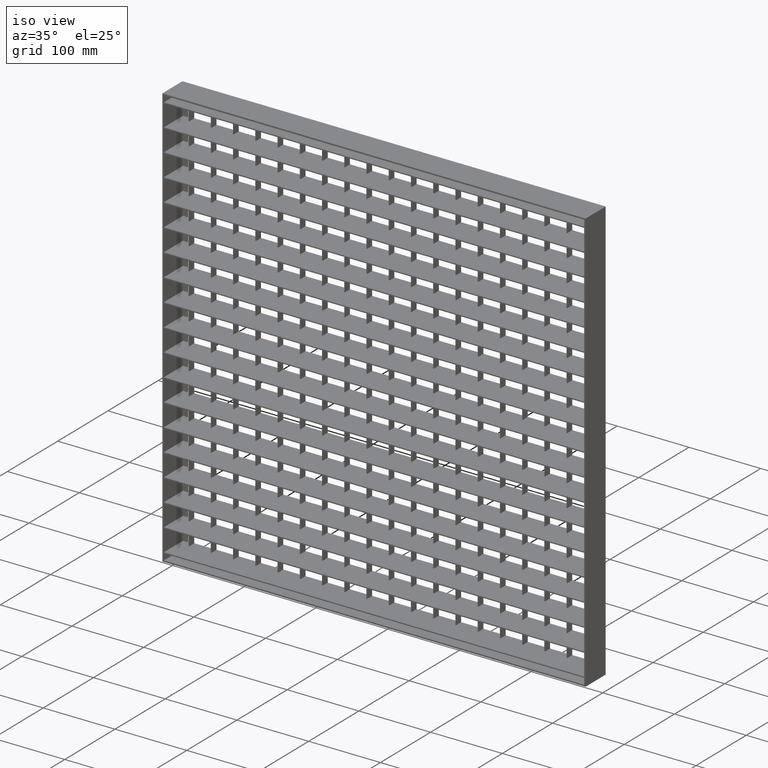
[diagram: clean part render]
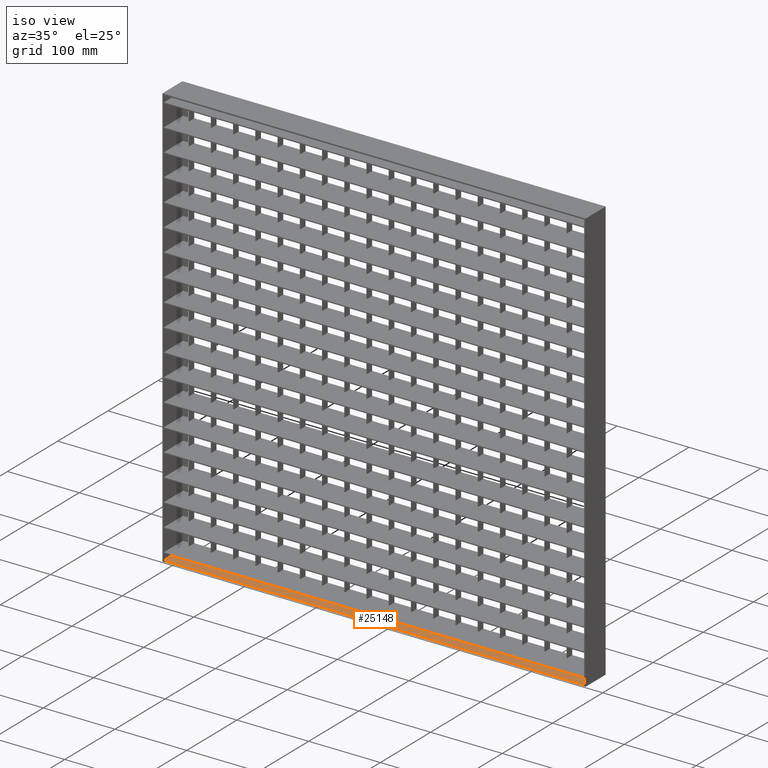
[diagram: same view with one face highlighted and labeled with its STEP entity id]
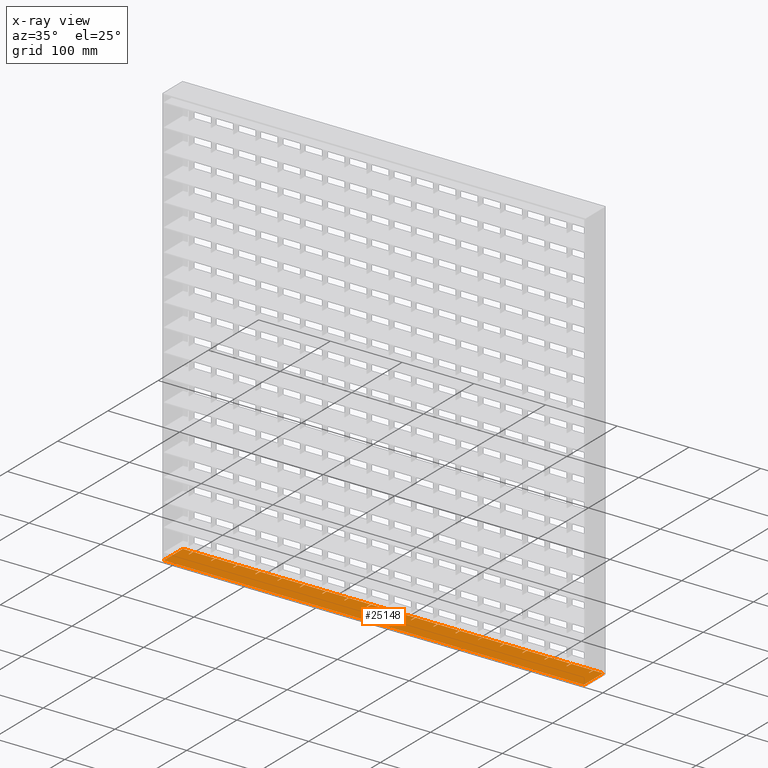
[diagram: x-ray of the same camera — body ghosted, the highlighted face saturated]
A machine part, iso view. The second image highlights one B-rep face of the part: STEP entity #25148.
The next image is the same camera in x-ray: the body ghosted, the highlighted face saturated — about 0% of this face is hidden behind the body in this view.
In plain terms, the highlighted planar face has unit normal (0, 0, -1).
Its self-contained STEP definition (entity closure, byte-faithful):
#134 = VERTEX_POINT ( 'NONE', #45676 ) ;
#180 = CARTESIAN_POINT ( 'NONE',  ( 2.000000000000001800, 18.00000000000000400, -588.0000000000000000 ) ) ;
#240 = CARTESIAN_POINT ( 'NONE',  ( 511.5000000000000600, 18.00000000000000400, -588.0000000000000000 ) ) ;
#290 = VECTOR ( 'NONE', #3528, 1000.000000000000000 ) ;
#351 = CARTESIAN_POINT ( 'NONE',  ( 387.5000000000000000, 9.999999999999998200, -588.0000000000000000 ) ) ;
#519 = CARTESIAN_POINT ( 'NONE',  ( 77.50000000000004300, 9.999999999999994700, -588.0000000000000000 ) ) ;
#600 = ORIENTED_EDGE ( 'NONE', *, *, #44065, .T. ) ;
#650 = CARTESIAN_POINT ( 'NONE',  ( 264.5000000000000600, 9.999999999999998200, -588.0000000000000000 ) ) ;
#685 = ORIENTED_EDGE ( 'NONE', *, *, #48717, .F. ) ;
#743 = VERTEX_POINT ( 'NONE', #16416 ) ;
#780 = VECTOR ( 'NONE', #9433, 1000.000000000000000 ) ;
#792 = CARTESIAN_POINT ( 'NONE',  ( 2.000000000000001800, 18.00000000000000400, -588.0000000000000000 ) ) ;
#813 = CARTESIAN_POINT ( 'NONE',  ( 449.5000000000000600, 18.00000000000000400, -588.0000000000000000 ) ) ;
#828 = EDGE_CURVE ( 'NONE', #5416, #4920, #31698, .T. ) ;
#865 = LINE ( 'NONE', #44191, #54158 ) ;
#958 = VECTOR ( 'NONE', #44131, 1000.000000000000000 ) ;
#959 = CARTESIAN_POINT ( 'NONE',  ( 511.5000000000000600, 9.999999999999998200, -588.0000000000000000 ) ) ;
#991 = LINE ( 'NONE', #37320, #32721 ) ;
#1044 = ORIENTED_EDGE ( 'NONE', *, *, #9510, .F. ) ;
#1110 = VERTEX_POINT ( 'NONE', #650 ) ;
#1149 = VERTEX_POINT ( 'NONE', #26304 ) ;
#1267 = CARTESIAN_POINT ( 'NONE',  ( 2.000000000000001800, 18.00000000000000400, -588.0000000000000000 ) ) ;
#1323 = CARTESIAN_POINT ( 'NONE',  ( 388.5000000000000000, 9.999999999999994700, -588.0000000000000000 ) ) ;
#1375 = ORIENTED_EDGE ( 'NONE', *, *, #54372, .F. ) ;
#1385 = VERTEX_POINT ( 'NONE', #2513 ) ;
#1523 = EDGE_CURVE ( 'NONE', #40513, #38666, #36363, .T. ) ;
#1589 = CARTESIAN_POINT ( 'NONE',  ( 47.50000000000004300, 9.999999999999998200, -588.0000000000000000 ) ) ;
#1625 = LINE ( 'NONE', #45986, #51701 ) ;
#1680 = ORIENTED_EDGE ( 'NONE', *, *, #29247, .F. ) ;
#1760 = CARTESIAN_POINT ( 'NONE',  ( 357.5000000000001100, 18.00000000000000400, -588.0000000000000000 ) ) ;
#1858 = ORIENTED_EDGE ( 'NONE', *, *, #45132, .F. ) ;
#2043 = CARTESIAN_POINT ( 'NONE',  ( 2.000000000000001800, 18.00000000000000400, -588.0000000000000000 ) ) ;
#2348 = CARTESIAN_POINT ( 'NONE',  ( 140.5000000000000300, 9.999999999999998200, -588.0000000000000000 ) ) ;
#2513 = CARTESIAN_POINT ( 'NONE',  ( 295.5000000000000600, 18.00000000000000400, -588.0000000000000000 ) ) ;
#2547 = LINE ( 'NONE', #37496, #45751 ) ;
#2585 = CARTESIAN_POINT ( 'NONE',  ( 2.000000000000001800, 18.00000000000000400, -588.0000000000000000 ) ) ;
#2662 = VECTOR ( 'NONE', #6017, 1000.000000000000000 ) ;
#2679 = ORIENTED_EDGE ( 'NONE', *, *, #30098, .T. ) ;
#2748 = CARTESIAN_POINT ( 'NONE',  ( 481.5000000000000000, 9.999999999999994700, -588.0000000000000000 ) ) ;
#2998 = CARTESIAN_POINT ( 'NONE',  ( 109.5000000000000400, 19.99999999999999600, -588.0000000000000000 ) ) ;
#3097 = VERTEX_POINT ( 'NONE', #8331 ) ;
#3181 = ORIENTED_EDGE ( 'NONE', *, *, #40553, .F. ) ;
#3189 = DIRECTION ( 'NONE',  ( -1.000000000000000000, 0.0000000000000000000, -0.0000000000000000000 ) ) ;
#3301 = VERTEX_POINT ( 'NONE', #959 ) ;
#3466 = DIRECTION ( 'NONE',  ( 0.0000000000000000000, 1.000000000000000000, 0.0000000000000000000 ) ) ;
#3505 = VERTEX_POINT ( 'NONE', #32447 ) ;
#3528 = DIRECTION ( 'NONE',  ( -1.000000000000000000, 0.0000000000000000000, 0.0000000000000000000 ) ) ;
#3566 = VECTOR ( 'NONE', #24370, 1000.000000000000000 ) ;
#3657 = VERTEX_POINT ( 'NONE', #14674 ) ;
#4074 = LINE ( 'NONE', #2585, #38559 ) ;
#4087 = CARTESIAN_POINT ( 'NONE',  ( 202.5000000000000300, 19.99999999999999600, -588.0000000000000000 ) ) ;
#4102 = LINE ( 'NONE', #23967, #4830 ) ;
#4147 = VERTEX_POINT ( 'NONE', #813 ) ;
#4152 = CARTESIAN_POINT ( 'NONE',  ( 449.5000000000000600, 19.99999999999999600, -588.0000000000000000 ) ) ;
#4362 = LINE ( 'NONE', #51301, #41570 ) ;
#4409 = DIRECTION ( 'NONE',  ( 0.0000000000000000000, -1.000000000000000000, 0.0000000000000000000 ) ) ;
#4498 = LINE ( 'NONE', #25284, #30820 ) ;
#4604 = CARTESIAN_POINT ( 'NONE',  ( 201.5000000000000300, 9.999999999999994700, -588.0000000000000000 ) ) ;
#4707 = DIRECTION ( 'NONE',  ( 0.0000000000000000000, 1.000000000000000000, 0.0000000000000000000 ) ) ;
#4779 = CARTESIAN_POINT ( 'NONE',  ( 15.50000000000001400, 9.999999999999994700, -588.0000000000000000 ) ) ;
#4830 = VECTOR ( 'NONE', #7162, 1000.000000000000000 ) ;
#4895 = VECTOR ( 'NONE', #5551, 1000.000000000000000 ) ;
#4920 = VERTEX_POINT ( 'NONE', #52122 ) ;
#5027 = EDGE_CURVE ( 'NONE', #15977, #21244, #33663, .T. ) ;
#5127 = LINE ( 'NONE', #180, #38223 ) ;
#5143 = CARTESIAN_POINT ( 'NONE',  ( 2.000000000000001800, 18.00000000000000400, -588.0000000000000000 ) ) ;
#5230 = VERTEX_POINT ( 'NONE', #23412 ) ;
#5238 = VECTOR ( 'NONE', #46627, 1000.000000000000000 ) ;
#5250 = CARTESIAN_POINT ( 'NONE',  ( 232.5000000000000300, 18.00000000000000700, -588.0000000000000000 ) ) ;
#5304 = CARTESIAN_POINT ( 'NONE',  ( 202.5000000000000300, 18.00000000000000700, -588.0000000000000000 ) ) ;
#5416 = VERTEX_POINT ( 'NONE', #28666 ) ;
#5551 = DIRECTION ( 'NONE',  ( 0.0000000000000000000, -1.000000000000000000, 0.0000000000000000000 ) ) ;
#5730 = EDGE_CURVE ( 'NONE', #49909, #22461, #20036, .T. ) ;
#5821 = VERTEX_POINT ( 'NONE', #240 ) ;
#5828 = VECTOR ( 'NONE', #34373, 1000.000000000000000 ) ;
#5839 = ORIENTED_EDGE ( 'NONE', *, *, #30085, .T. ) ;
#5842 = VERTEX_POINT ( 'NONE', #4604 ) ;
#5861 = EDGE_CURVE ( 'NONE', #11544, #52418, #27432, .T. ) ;
#5894 = LINE ( 'NONE', #49597, #53185 ) ;
#6017 = DIRECTION ( 'NONE',  ( 1.000000000000000000, 0.0000000000000000000, 0.0000000000000000000 ) ) ;
#6106 = DIRECTION ( 'NONE',  ( 0.0000000000000000000, 1.000000000000000000, 0.0000000000000000000 ) ) ;
#6290 = CARTESIAN_POINT ( 'NONE',  ( 16.50000000000001400, 18.00000000000000700, -588.0000000000000000 ) ) ;
#6306 = VECTOR ( 'NONE', #11405, 1000.000000000000000 ) ;
#6321 = EDGE_CURVE ( 'NONE', #22187, #22461, #30756, .T. ) ;
#6548 = VECTOR ( 'NONE', #7634, 1000.000000000000000 ) ;
#6677 = EDGE_CURVE ( 'NONE', #48567, #27919, #38859, .T. ) ;
#6707 = EDGE_CURVE ( 'NONE', #15284, #24308, #21926, .T. ) ;
#6774 = LINE ( 'NONE', #28858, #26373 ) ;
#6777 = EDGE_CURVE ( 'NONE', #35450, #48977, #55000, .T. ) ;
#6832 = LINE ( 'NONE', #51232, #31814 ) ;
#6892 = DIRECTION ( 'NONE',  ( 1.000000000000000000, 0.0000000000000000000, 0.0000000000000000000 ) ) ;
#7101 = VERTEX_POINT ( 'NONE', #41897 ) ;
#7115 = VECTOR ( 'NONE', #56058, 1000.000000000000000 ) ;
#7131 = DIRECTION ( 'NONE',  ( 0.0000000000000000000, -1.000000000000000000, 0.0000000000000000000 ) ) ;
#7162 = DIRECTION ( 'NONE',  ( 1.000000000000000000, 0.0000000000000000000, 0.0000000000000000000 ) ) ;
#7284 = EDGE_CURVE ( 'NONE', #28447, #40760, #9735, .T. ) ;
#7329 = CARTESIAN_POINT ( 'NONE',  ( 15.50000000000001400, 9.999999999999994700, -588.0000000000000000 ) ) ;
#7343 = EDGE_CURVE ( 'NONE', #21062, #55153, #17145, .T. ) ;
#7454 = ORIENTED_EDGE ( 'NONE', *, *, #17777, .F. ) ;
#7539 = ORIENTED_EDGE ( 'NONE', *, *, #18351, .T. ) ;
#7585 = ORIENTED_EDGE ( 'NONE', *, *, #828, .T. ) ;
#7634 = DIRECTION ( 'NONE',  ( 1.000000000000000000, 0.0000000000000000000, 0.0000000000000000000 ) ) ;
#7936 = DIRECTION ( 'NONE',  ( -1.000000000000000000, 0.0000000000000000000, 0.0000000000000000000 ) ) ;
#7955 = DIRECTION ( 'NONE',  ( 1.000000000000000000, 0.0000000000000000000, 0.0000000000000000000 ) ) ;
#8146 = CARTESIAN_POINT ( 'NONE',  ( 418.5000000000000600, 9.999999999999994700, -588.0000000000000000 ) ) ;
#8331 = CARTESIAN_POINT ( 'NONE',  ( 202.5000000000000300, 9.999999999999998200, -588.0000000000000000 ) ) ;
#8367 = VECTOR ( 'NONE', #26177, 1000.000000000000000 ) ;
#8449 = VECTOR ( 'NONE', #12154, 1000.000000000000000 ) ;
#8450 = CARTESIAN_POINT ( 'NONE',  ( 171.5000000000000300, 9.999999999999994700, -588.0000000000000000 ) ) ;
#8466 = ORIENTED_EDGE ( 'NONE', *, *, #10574, .T. ) ;
#8677 = LINE ( 'NONE', #28960, #49891 ) ;
#8695 = ORIENTED_EDGE ( 'NONE', *, *, #32972, .F. ) ;
#8799 = ORIENTED_EDGE ( 'NONE', *, *, #47265, .T. ) ;
#9254 = LINE ( 'NONE', #40588, #42357 ) ;
#9369 = EDGE_CURVE ( 'NONE', #41704, #49649, #26875, .T. ) ;
#9433 = DIRECTION ( 'NONE',  ( 0.0000000000000000000, -1.000000000000000000, 0.0000000000000000000 ) ) ;
#9510 = EDGE_CURVE ( 'NONE', #15073, #22520, #55931, .T. ) ;
#9735 = LINE ( 'NONE', #8450, #19845 ) ;
#9804 = CARTESIAN_POINT ( 'NONE',  ( 201.5000000000000300, 9.999999999999994700, -588.0000000000000000 ) ) ;
#9878 = ORIENTED_EDGE ( 'NONE', *, *, #10519, .F. ) ;
#10028 = DIRECTION ( 'NONE',  ( 0.0000000000000000000, 1.000000000000000000, 0.0000000000000000000 ) ) ;
#10109 = CARTESIAN_POINT ( 'NONE',  ( 542.5000000000000000, 9.999999999999998200, -588.0000000000000000 ) ) ;
#10209 = CARTESIAN_POINT ( 'NONE',  ( 419.5000000000000600, 18.00000000000000400, -588.0000000000000000 ) ) ;
#10519 = EDGE_CURVE ( 'NONE', #24856, #5821, #5127, .T. ) ;
#10566 = ORIENTED_EDGE ( 'NONE', *, *, #40208, .F. ) ;
#10574 = EDGE_CURVE ( 'NONE', #55229, #4147, #17315, .T. ) ;
#10674 = DIRECTION ( 'NONE',  ( 1.000000000000000000, 0.0000000000000000000, 0.0000000000000000000 ) ) ;
#10722 = CARTESIAN_POINT ( 'NONE',  ( 588.0000000000001100, 18.00000000000000400, -588.0000000000000000 ) ) ;
#10914 = ORIENTED_EDGE ( 'NONE', *, *, #55033, .F. ) ;
#11125 = ORIENTED_EDGE ( 'NONE', *, *, #25164, .T. ) ;
#11169 = LINE ( 'NONE', #22301, #41603 ) ;
#11218 = CARTESIAN_POINT ( 'NONE',  ( 139.5000000000000300, 18.00000000000000700, -588.0000000000000000 ) ) ;
#11270 = ORIENTED_EDGE ( 'NONE', *, *, #35288, .F. ) ;
#11382 = EDGE_CURVE ( 'NONE', #27476, #35378, #50936, .T. ) ;
#11405 = DIRECTION ( 'NONE',  ( 0.0000000000000000000, -1.000000000000000000, 0.0000000000000000000 ) ) ;
#11489 = VECTOR ( 'NONE', #38673, 1000.000000000000000 ) ;
#11544 = VERTEX_POINT ( 'NONE', #26077 ) ;
#11599 = LINE ( 'NONE', #55228, #30496 ) ;
#11636 = VERTEX_POINT ( 'NONE', #1323 ) ;
#12007 = CARTESIAN_POINT ( 'NONE',  ( 357.5000000000001100, 9.999999999999994700, -588.0000000000000000 ) ) ;
#12017 = DIRECTION ( 'NONE',  ( 0.0000000000000000000, 1.000000000000000000, 0.0000000000000000000 ) ) ;
#12094 = DIRECTION ( 'NONE',  ( 0.0000000000000000000, 1.000000000000000000, 0.0000000000000000000 ) ) ;
#12130 = DIRECTION ( 'NONE',  ( 1.000000000000000000, 0.0000000000000000000, 0.0000000000000000000 ) ) ;
#12154 = DIRECTION ( 'NONE',  ( 0.0000000000000000000, -1.000000000000000000, 0.0000000000000000000 ) ) ;
#12224 = EDGE_CURVE ( 'NONE', #743, #22187, #41418, .T. ) ;
#12457 = ORIENTED_EDGE ( 'NONE', *, *, #46300, .F. ) ;
#12637 = LINE ( 'NONE', #47991, #55154 ) ;
#12638 = EDGE_CURVE ( 'NONE', #51949, #45934, #4102, .T. ) ;
#12655 = CARTESIAN_POINT ( 'NONE',  ( 15.50000000000001400, 18.00000000000000700, -588.0000000000000000 ) ) ;
#12690 = DIRECTION ( 'NONE',  ( 0.0000000000000000000, -1.000000000000000000, 0.0000000000000000000 ) ) ;
#12751 = VECTOR ( 'NONE', #33870, 1000.000000000000000 ) ;
#12843 = VERTEX_POINT ( 'NONE', #46782 ) ;
#13402 = CARTESIAN_POINT ( 'NONE',  ( 264.5000000000000600, 9.999999999999994700, -588.0000000000000000 ) ) ;
#13455 = ORIENTED_EDGE ( 'NONE', *, *, #23066, .T. ) ;
#13462 = DIRECTION ( 'NONE',  ( 1.000000000000000000, 0.0000000000000000000, 0.0000000000000000000 ) ) ;
#13598 = ORIENTED_EDGE ( 'NONE', *, *, #14199, .F. ) ;
#13670 = VECTOR ( 'NONE', #16184, 1000.000000000000000 ) ;
#13870 = CARTESIAN_POINT ( 'NONE',  ( 356.5000000000001100, 19.99999999999999600, -588.0000000000000000 ) ) ;
#13895 = VERTEX_POINT ( 'NONE', #45361 ) ;
#14199 = EDGE_CURVE ( 'NONE', #50239, #41361, #14932, .T. ) ;
#14235 = VERTEX_POINT ( 'NONE', #39126 ) ;
#14358 = ORIENTED_EDGE ( 'NONE', *, *, #29652, .T. ) ;
#14592 = ORIENTED_EDGE ( 'NONE', *, *, #36842, .F. ) ;
#14674 = CARTESIAN_POINT ( 'NONE',  ( 264.5000000000000600, 18.00000000000000700, -588.0000000000000000 ) ) ;
#14790 = CARTESIAN_POINT ( 'NONE',  ( 480.5000000000000000, 19.99999999999999600, -588.0000000000000000 ) ) ;
#14876 = VECTOR ( 'NONE', #37237, 1000.000000000000000 ) ;
#14932 = LINE ( 'NONE', #16657, #54077 ) ;
#14978 = ORIENTED_EDGE ( 'NONE', *, *, #7284, .F. ) ;
#15073 = VERTEX_POINT ( 'NONE', #48926 ) ;
#15096 = LINE ( 'NONE', #37264, #6306 ) ;
#15284 = VERTEX_POINT ( 'NONE', #10209 ) ;
#15461 = LINE ( 'NONE', #18978, #43125 ) ;
#15482 = ORIENTED_EDGE ( 'NONE', *, *, #12638, .F. ) ;
#15522 = CARTESIAN_POINT ( 'NONE',  ( 2.000000000000001800, 18.00000000000000400, -588.0000000000000000 ) ) ;
#15591 = ORIENTED_EDGE ( 'NONE', *, *, #12224, .T. ) ;
#15619 = ORIENTED_EDGE ( 'NONE', *, *, #39569, .F. ) ;
#15644 = CARTESIAN_POINT ( 'NONE',  ( 356.5000000000001100, 18.00000000000000400, -588.0000000000000000 ) ) ;
#15687 = ORIENTED_EDGE ( 'NONE', *, *, #31603, .F. ) ;
#15742 = CARTESIAN_POINT ( 'NONE',  ( 170.5000000000000300, 9.999999999999994700, -588.0000000000000000 ) ) ;
#15957 = EDGE_CURVE ( 'NONE', #27919, #53712, #5894, .T. ) ;
#15977 = VERTEX_POINT ( 'NONE', #44887 ) ;
#16184 = DIRECTION ( 'NONE',  ( 0.0000000000000000000, -1.000000000000000000, 0.0000000000000000000 ) ) ;
#16257 = ORIENTED_EDGE ( 'NONE', *, *, #17852, .F. ) ;
#16416 = CARTESIAN_POINT ( 'NONE',  ( 574.5000000000000000, 9.999999999999994700, -588.0000000000000000 ) ) ;
#16657 = CARTESIAN_POINT ( 'NONE',  ( 2.000000000000001800, 18.00000000000000400, -588.0000000000000000 ) ) ;
#16735 = CARTESIAN_POINT ( 'NONE',  ( 543.5000000000001100, 9.999999999999994700, -588.0000000000000000 ) ) ;
#17072 = FACE_OUTER_BOUND ( 'NONE', #28051, .T. ) ;
#17120 = ORIENTED_EDGE ( 'NONE', *, *, #5027, .F. ) ;
#17145 = LINE ( 'NONE', #39245, #8367 ) ;
#17171 = VERTEX_POINT ( 'NONE', #50029 ) ;
#17256 = DIRECTION ( 'NONE',  ( 1.000000000000000000, 0.0000000000000000000, 0.0000000000000000000 ) ) ;
#17315 = LINE ( 'NONE', #4152, #5828 ) ;
#17371 = CARTESIAN_POINT ( 'NONE',  ( 77.50000000000004300, 9.999999999999994700, -588.0000000000000000 ) ) ;
#17458 = CARTESIAN_POINT ( 'NONE',  ( 512.5000000000000000, 18.00000000000000400, -588.0000000000000000 ) ) ;
#17569 = VERTEX_POINT ( 'NONE', #1589 ) ;
#17579 = LINE ( 'NONE', #8146, #39229 ) ;
#17777 = EDGE_CURVE ( 'NONE', #21244, #11544, #34019, .T. ) ;
#17852 = EDGE_CURVE ( 'NONE', #48589, #40513, #54935, .T. ) ;
#17924 = CARTESIAN_POINT ( 'NONE',  ( 232.5000000000000300, 9.999999999999994700, -588.0000000000000000 ) ) ;
#17938 = VECTOR ( 'NONE', #12017, 1000.000000000000000 ) ;
#18314 = VERTEX_POINT ( 'NONE', #11218 ) ;
#18351 = EDGE_CURVE ( 'NONE', #32251, #11636, #15096, .T. ) ;
#18978 = CARTESIAN_POINT ( 'NONE',  ( 295.5000000000000600, 9.999999999999994700, -588.0000000000000000 ) ) ;
#19101 = CARTESIAN_POINT ( 'NONE',  ( 2.000000000000001800, 18.00000000000000400, -588.0000000000000000 ) ) ;
#19288 = CARTESIAN_POINT ( 'NONE',  ( 139.5000000000000300, 9.999999999999994700, -588.0000000000000000 ) ) ;
#19356 = LINE ( 'NONE', #13402, #26101 ) ;
#19615 = CARTESIAN_POINT ( 'NONE',  ( 233.5000000000000300, 18.00000000000000700, -588.0000000000000000 ) ) ;
#19845 = VECTOR ( 'NONE', #39427, 1000.000000000000000 ) ;
#19883 = VECTOR ( 'NONE', #42136, 1000.000000000000000 ) ;
#19909 = LINE ( 'NONE', #46592, #29321 ) ;
#20036 = LINE ( 'NONE', #55210, #6548 ) ;
#20076 = VECTOR ( 'NONE', #7131, 1000.000000000000000 ) ;
#20152 = DIRECTION ( 'NONE',  ( 1.000000000000000000, 0.0000000000000000000, 0.0000000000000000000 ) ) ;
#20520 = CARTESIAN_POINT ( 'NONE',  ( 171.5000000000000300, 9.999999999999998200, -588.0000000000000000 ) ) ;
#20557 = DIRECTION ( 'NONE',  ( 0.0000000000000000000, -1.000000000000000000, 0.0000000000000000000 ) ) ;
#20568 = DIRECTION ( 'NONE',  ( 0.0000000000000000000, 0.0000000000000000000, -1.000000000000000000 ) ) ;
#20904 = DIRECTION ( 'NONE',  ( 1.000000000000000000, 0.0000000000000000000, 0.0000000000000000000 ) ) ;
#20909 = CARTESIAN_POINT ( 'NONE',  ( 326.5000000000000600, 9.999999999999994700, -588.0000000000000000 ) ) ;
#20915 = CARTESIAN_POINT ( 'NONE',  ( 2.000000000000003600, -20.00000000000000000, -588.0000000000000000 ) ) ;
#20941 = EDGE_CURVE ( 'NONE', #47814, #38666, #48832, .T. ) ;
#21062 = VERTEX_POINT ( 'NONE', #5304 ) ;
#21208 = EDGE_CURVE ( 'NONE', #17569, #36941, #55520, .T. ) ;
#21226 = LINE ( 'NONE', #14790, #19883 ) ;
#21243 = VECTOR ( 'NONE', #29702, 1000.000000000000000 ) ;
#21244 = VERTEX_POINT ( 'NONE', #19615 ) ;
#21268 = DIRECTION ( 'NONE',  ( 1.000000000000000000, 0.0000000000000000000, 0.0000000000000000000 ) ) ;
#21376 = VECTOR ( 'NONE', #4409, 1000.000000000000000 ) ;
#21626 = VERTEX_POINT ( 'NONE', #47915 ) ;
#21711 = DIRECTION ( 'NONE',  ( 1.000000000000000000, 0.0000000000000000000, 0.0000000000000000000 ) ) ;
#21728 = DIRECTION ( 'NONE',  ( 0.0000000000000000000, -1.000000000000000000, 0.0000000000000000000 ) ) ;
#21926 = LINE ( 'NONE', #50126, #8449 ) ;
#21965 = CARTESIAN_POINT ( 'NONE',  ( 263.5000000000000600, 9.999999999999994700, -588.0000000000000000 ) ) ;
#22054 = CARTESIAN_POINT ( 'NONE',  ( 449.5000000000000600, 9.999999999999998200, -588.0000000000000000 ) ) ;
#22187 = VERTEX_POINT ( 'NONE', #39697 ) ;
#22199 = VECTOR ( 'NONE', #10028, 1000.000000000000000 ) ;
#22242 = VECTOR ( 'NONE', #49290, 1000.000000000000000 ) ;
#22301 = CARTESIAN_POINT ( 'NONE',  ( 418.5000000000000600, 19.99999999999999600, -588.0000000000000000 ) ) ;
#22409 = DIRECTION ( 'NONE',  ( -1.000000000000000000, 0.0000000000000000000, 0.0000000000000000000 ) ) ;
#22461 = VERTEX_POINT ( 'NONE', #28284 ) ;
#22469 = ORIENTED_EDGE ( 'NONE', *, *, #51281, .T. ) ;
#22510 = DIRECTION ( 'NONE',  ( 0.0000000000000000000, -1.000000000000000000, 0.0000000000000000000 ) ) ;
#22520 = VERTEX_POINT ( 'NONE', #29987 ) ;
#22910 = DIRECTION ( 'NONE',  ( 0.0000000000000000000, 1.000000000000000000, 0.0000000000000000000 ) ) ;
#22996 = EDGE_CURVE ( 'NONE', #49649, #48567, #48583, .T. ) ;
#23066 = EDGE_CURVE ( 'NONE', #49909, #1149, #50567, .T. ) ;
#23069 = ORIENTED_EDGE ( 'NONE', *, *, #29322, .F. ) ;
#23140 = LINE ( 'NONE', #34578, #29197 ) ;
#23273 = ORIENTED_EDGE ( 'NONE', *, *, #31295, .T. ) ;
#23279 = VECTOR ( 'NONE', #6892, 1000.000000000000000 ) ;
#23294 = EDGE_CURVE ( 'NONE', #12843, #34102, #28888, .T. ) ;
#23412 = CARTESIAN_POINT ( 'NONE',  ( 171.5000000000000300, 18.00000000000000700, -588.0000000000000000 ) ) ;
#23484 = CARTESIAN_POINT ( 'NONE',  ( 574.5000000000000000, 18.00000000000000400, -588.0000000000000000 ) ) ;
#23524 = VECTOR ( 'NONE', #24473, 1000.000000000000000 ) ;
#23779 = CARTESIAN_POINT ( 'NONE',  ( 2.000000000000001800, 18.00000000000000400, -588.0000000000000000 ) ) ;
#23967 = CARTESIAN_POINT ( 'NONE',  ( 140.5000000000000300, 9.999999999999994700, -588.0000000000000000 ) ) ;
#24074 = EDGE_CURVE ( 'NONE', #47814, #37415, #50420, .T. ) ;
#24252 = LINE ( 'NONE', #44209, #22242 ) ;
#24267 = DIRECTION ( 'NONE',  ( 1.000000000000000000, 0.0000000000000000000, 0.0000000000000000000 ) ) ;
#24308 = VERTEX_POINT ( 'NONE', #44449 ) ;
#24340 = DIRECTION ( 'NONE',  ( 1.000000000000000000, 0.0000000000000000000, 0.0000000000000000000 ) ) ;
#24370 = DIRECTION ( 'NONE',  ( 1.000000000000000000, 0.0000000000000000000, 0.0000000000000000000 ) ) ;
#24473 = DIRECTION ( 'NONE',  ( 0.0000000000000000000, 1.000000000000000000, 0.0000000000000000000 ) ) ;
#24516 = VERTEX_POINT ( 'NONE', #54402 ) ;
#24518 = CARTESIAN_POINT ( 'NONE',  ( 542.5000000000000000, 9.999999999999994700, -588.0000000000000000 ) ) ;
#24521 = EDGE_CURVE ( 'NONE', #30771, #7101, #21226, .T. ) ;
#24553 = ORIENTED_EDGE ( 'NONE', *, *, #34804, .T. ) ;
#24589 = CARTESIAN_POINT ( 'NONE',  ( 588.0000000000000000, -20.00000000000000000, -588.0000000000000000 ) ) ;
#24632 = EDGE_CURVE ( 'NONE', #24963, #1385, #25946, .T. ) ;
#24789 = DIRECTION ( 'NONE',  ( 0.0000000000000000000, -1.000000000000000000, 0.0000000000000000000 ) ) ;
#24856 = VERTEX_POINT ( 'NONE', #43832 ) ;
#24880 = VECTOR ( 'NONE', #24789, 1000.000000000000000 ) ;
#24963 = VERTEX_POINT ( 'NONE', #26961 ) ;
#25099 = CARTESIAN_POINT ( 'NONE',  ( 387.5000000000000000, 9.999999999999994700, -588.0000000000000000 ) ) ;
#25148 = ADVANCED_FACE ( 'NONE', ( #17072 ), #42471, .F. ) ;
#25164 = EDGE_CURVE ( 'NONE', #43639, #41361, #42115, .T. ) ;
#25284 = CARTESIAN_POINT ( 'NONE',  ( 2.000000000000001800, 18.00000000000000400, -588.0000000000000000 ) ) ;
#25641 = DIRECTION ( 'NONE',  ( 1.000000000000000000, 0.0000000000000000000, 0.0000000000000000000 ) ) ;
#25679 = CARTESIAN_POINT ( 'NONE',  ( 573.5000000000001100, 9.999999999999994700, -588.0000000000000000 ) ) ;
#25685 = DIRECTION ( 'NONE',  ( -1.000000000000000000, 0.0000000000000000000, 0.0000000000000000000 ) ) ;
#25740 = CARTESIAN_POINT ( 'NONE',  ( 418.5000000000000600, 18.00000000000000400, -588.0000000000000000 ) ) ;
#25773 = EDGE_CURVE ( 'NONE', #13895, #3301, #11599, .T. ) ;
#25825 = VECTOR ( 'NONE', #55909, 1000.000000000000000 ) ;
#25896 = VECTOR ( 'NONE', #54191, 1000.000000000000000 ) ;
#25915 = LINE ( 'NONE', #4087, #958 ) ;
#25946 = LINE ( 'NONE', #37413, #48945 ) ;
#25950 = ORIENTED_EDGE ( 'NONE', *, *, #6707, .T. ) ;
#25990 = CARTESIAN_POINT ( 'NONE',  ( 233.5000000000000300, 9.999999999999994700, -588.0000000000000000 ) ) ;
#26031 = DIRECTION ( 'NONE',  ( 0.0000000000000000000, 1.000000000000000000, 0.0000000000000000000 ) ) ;
#26077 = CARTESIAN_POINT ( 'NONE',  ( 263.5000000000000600, 18.00000000000000700, -588.0000000000000000 ) ) ;
#26101 = VECTOR ( 'NONE', #52650, 1000.000000000000000 ) ;
#26177 = DIRECTION ( 'NONE',  ( 1.000000000000000000, 0.0000000000000000000, 0.0000000000000000000 ) ) ;
#26178 = VECTOR ( 'NONE', #49049, 1000.000000000000000 ) ;
#26256 = EDGE_CURVE ( 'NONE', #27476, #24516, #6774, .T. ) ;
#26275 = LINE ( 'NONE', #2043, #2662 ) ;
#26304 = CARTESIAN_POINT ( 'NONE',  ( 543.5000000000001100, 9.999999999999994700, -588.0000000000000000 ) ) ;
#26373 = VECTOR ( 'NONE', #20904, 1000.000000000000000 ) ;
#26441 = DIRECTION ( 'NONE',  ( 1.000000000000000000, 0.0000000000000000000, 0.0000000000000000000 ) ) ;
#26505 = EDGE_CURVE ( 'NONE', #40532, #51259, #53372, .T. ) ;
#26559 = VERTEX_POINT ( 'NONE', #51687 ) ;
#26639 = VECTOR ( 'NONE', #22409, 1000.000000000000000 ) ;
#26875 = LINE ( 'NONE', #31268, #49230 ) ;
#26961 = CARTESIAN_POINT ( 'NONE',  ( 295.5000000000000600, 9.999999999999994700, -588.0000000000000000 ) ) ;
#26976 = ORIENTED_EDGE ( 'NONE', *, *, #20941, .T. ) ;
#27285 = LINE ( 'NONE', #43608, #47589 ) ;
#27432 = LINE ( 'NONE', #21965, #21376 ) ;
#27443 = VERTEX_POINT ( 'NONE', #45368 ) ;
#27476 = VERTEX_POINT ( 'NONE', #1760 ) ;
#27584 = VERTEX_POINT ( 'NONE', #54411 ) ;
#27838 = CARTESIAN_POINT ( 'NONE',  ( 543.5000000000001100, 18.00000000000000400, -588.0000000000000000 ) ) ;
#27919 = VERTEX_POINT ( 'NONE', #49038 ) ;
#27940 = CARTESIAN_POINT ( 'NONE',  ( 201.5000000000000300, 18.00000000000000700, -588.0000000000000000 ) ) ;
#28051 = EDGE_LOOP ( 'NONE', ( #29714, #15591, #28877, #29626, #13455, #23273, #11125, #13598, #31130, #52084, #22469, #9878, #8799, #50060, #43289, #49664, #31907, #2679, #8466, #33951, #25950, #33148, #28304, #30705, #7539, #24553, #50139, #37974, #43807, #14358, #43390, #32995, #7585, #5839, #600, #10914, #33051, #46093, #14592, #1680, #29766, #53637, #48607, #7454, #17120, #30327, #35976, #45304, #15687, #41289, #1858, #33209, #55518, #14978, #685, #1044, #10566, #15482, #50458, #8695, #23069, #42516, #11270, #12457, #54218, #55672, #35284, #39671, #47415, #1375, #29167, #37383, #31677, #53609, #15619, #3181, #54695, #26976, #45358, #16257 ) ) ;
#28115 = LINE ( 'NONE', #2998, #28771 ) ;
#28284 = CARTESIAN_POINT ( 'NONE',  ( 573.5000000000001100, 18.00000000000000400, -588.0000000000000000 ) ) ;
#28304 = ORIENTED_EDGE ( 'NONE', *, *, #42510, .T. ) ;
#28447 = VERTEX_POINT ( 'NONE', #44826 ) ;
#28513 = CARTESIAN_POINT ( 'NONE',  ( 2.000000000000001800, 18.00000000000000400, -588.0000000000000000 ) ) ;
#28626 = CARTESIAN_POINT ( 'NONE',  ( 108.5000000000000400, 9.999999999999994700, -588.0000000000000000 ) ) ;
#28666 = CARTESIAN_POINT ( 'NONE',  ( 326.5000000000000600, 18.00000000000000400, -588.0000000000000000 ) ) ;
#28771 = VECTOR ( 'NONE', #55467, 1000.000000000000000 ) ;
#28858 = CARTESIAN_POINT ( 'NONE',  ( 2.000000000000001800, 18.00000000000000400, -588.0000000000000000 ) ) ;
#28877 = ORIENTED_EDGE ( 'NONE', *, *, #6321, .T. ) ;
#28888 = LINE ( 'NONE', #13870, #50524 ) ;
#28919 = EDGE_CURVE ( 'NONE', #48589, #743, #12637, .T. ) ;
#28960 = CARTESIAN_POINT ( 'NONE',  ( 294.5000000000000600, 9.999999999999994700, -588.0000000000000000 ) ) ;
#29167 = ORIENTED_EDGE ( 'NONE', *, *, #15957, .F. ) ;
#29197 = VECTOR ( 'NONE', #29870, 1000.000000000000000 ) ;
#29247 = EDGE_CURVE ( 'NONE', #3657, #47172, #38939, .T. ) ;
#29321 = VECTOR ( 'NONE', #30514, 1000.000000000000000 ) ;
#29322 = EDGE_CURVE ( 'NONE', #55439, #38306, #28115, .T. ) ;
#29342 = DIRECTION ( 'NONE',  ( -1.000000000000000000, 0.0000000000000000000, 0.0000000000000000000 ) ) ;
#29380 = CARTESIAN_POINT ( 'NONE',  ( 573.5000000000001100, 19.99999999999999600, -588.0000000000000000 ) ) ;
#29626 = ORIENTED_EDGE ( 'NONE', *, *, #5730, .F. ) ;
#29652 = EDGE_CURVE ( 'NONE', #35378, #12843, #34066, .T. ) ;
#29702 = DIRECTION ( 'NONE',  ( 0.0000000000000000000, 1.000000000000000000, 0.0000000000000000000 ) ) ;
#29714 = ORIENTED_EDGE ( 'NONE', *, *, #28919, .T. ) ;
#29766 = ORIENTED_EDGE ( 'NONE', *, *, #45064, .F. ) ;
#29870 = DIRECTION ( 'NONE',  ( 0.0000000000000000000, 1.000000000000000000, 0.0000000000000000000 ) ) ;
#29875 = CARTESIAN_POINT ( 'NONE',  ( 47.50000000000004300, 18.00000000000000700, -588.0000000000000000 ) ) ;
#29891 = VECTOR ( 'NONE', #51375, 1000.000000000000000 ) ;
#29987 = CARTESIAN_POINT ( 'NONE',  ( 170.5000000000000300, 18.00000000000000700, -588.0000000000000000 ) ) ;
#30085 = EDGE_CURVE ( 'NONE', #4920, #17171, #2547, .T. ) ;
#30098 = EDGE_CURVE ( 'NONE', #26559, #55229, #45967, .T. ) ;
#30210 = DIRECTION ( 'NONE',  ( 0.0000000000000000000, 1.000000000000000000, 0.0000000000000000000 ) ) ;
#30327 = ORIENTED_EDGE ( 'NONE', *, *, #47783, .F. ) ;
#30363 = CARTESIAN_POINT ( 'NONE',  ( 263.5000000000000600, 9.999999999999994700, -588.0000000000000000 ) ) ;
#30464 = VECTOR ( 'NONE', #30210, 1000.000000000000000 ) ;
#30496 = VECTOR ( 'NONE', #29342, 1000.000000000000000 ) ;
#30497 = LINE ( 'NONE', #55238, #13670 ) ;
#30514 = DIRECTION ( 'NONE',  ( 0.0000000000000000000, 1.000000000000000000, 0.0000000000000000000 ) ) ;
#30705 = ORIENTED_EDGE ( 'NONE', *, *, #35191, .F. ) ;
#30756 = LINE ( 'NONE', #29380, #17938 ) ;
#30771 = VERTEX_POINT ( 'NONE', #34377 ) ;
#30788 = CARTESIAN_POINT ( 'NONE',  ( 233.5000000000000300, 19.99999999999999600, -588.0000000000000000 ) ) ;
#30820 = VECTOR ( 'NONE', #25641, 1000.000000000000000 ) ;
#30900 = LINE ( 'NONE', #42492, #5238 ) ;
#31130 = ORIENTED_EDGE ( 'NONE', *, *, #34722, .T. ) ;
#31204 = CARTESIAN_POINT ( 'NONE',  ( 450.5000000000000600, 9.999999999999994700, -588.0000000000000000 ) ) ;
#31268 = CARTESIAN_POINT ( 'NONE',  ( 16.50000000000001400, 9.999999999999994700, -588.0000000000000000 ) ) ;
#31295 = EDGE_CURVE ( 'NONE', #1149, #43639, #51663, .T. ) ;
#31430 = LINE ( 'NONE', #38713, #37504 ) ;
#31493 = EDGE_CURVE ( 'NONE', #51190, #24516, #19909, .T. ) ;
#31567 = EDGE_CURVE ( 'NONE', #5842, #3097, #4362, .T. ) ;
#31603 = EDGE_CURVE ( 'NONE', #3097, #21062, #25915, .T. ) ;
#31677 = ORIENTED_EDGE ( 'NONE', *, *, #22996, .F. ) ;
#31691 = VECTOR ( 'NONE', #26441, 1000.000000000000000 ) ;
#31698 = LINE ( 'NONE', #20909, #45917 ) ;
#31814 = VECTOR ( 'NONE', #17256, 1000.000000000000000 ) ;
#31907 = ORIENTED_EDGE ( 'NONE', *, *, #55821, .T. ) ;
#32228 = CARTESIAN_POINT ( 'NONE',  ( 294.5000000000000600, 18.00000000000000400, -588.0000000000000000 ) ) ;
#32251 = VERTEX_POINT ( 'NONE', #42944 ) ;
#32352 = CARTESIAN_POINT ( 'NONE',  ( 588.0000000000000000, -20.00000000000000000, -588.0000000000000000 ) ) ;
#32362 = AXIS2_PLACEMENT_3D ( 'NONE', #20915, #20568, #3189 ) ;
#32447 = CARTESIAN_POINT ( 'NONE',  ( 325.5000000000000600, 18.00000000000000400, -588.0000000000000000 ) ) ;
#32450 = VECTOR ( 'NONE', #21268, 1000.000000000000000 ) ;
#32721 = VECTOR ( 'NONE', #45839, 1000.000000000000000 ) ;
#32972 = EDGE_CURVE ( 'NONE', #38306, #18314, #6832, .T. ) ;
#32995 = ORIENTED_EDGE ( 'NONE', *, *, #37730, .F. ) ;
#33051 = ORIENTED_EDGE ( 'NONE', *, *, #24632, .F. ) ;
#33062 = VERTEX_POINT ( 'NONE', #47270 ) ;
#33131 = CARTESIAN_POINT ( 'NONE',  ( 109.5000000000000400, 9.999999999999998200, -588.0000000000000000 ) ) ;
#33148 = ORIENTED_EDGE ( 'NONE', *, *, #48823, .T. ) ;
#33160 = LINE ( 'NONE', #9804, #780 ) ;
#33209 = ORIENTED_EDGE ( 'NONE', *, *, #33926, .F. ) ;
#33364 = LINE ( 'NONE', #44824, #34732 ) ;
#33477 = DIRECTION ( 'NONE',  ( 0.0000000000000000000, -1.000000000000000000, 0.0000000000000000000 ) ) ;
#33527 = LINE ( 'NONE', #43084, #42977 ) ;
#33663 = LINE ( 'NONE', #30788, #22199 ) ;
#33870 = DIRECTION ( 'NONE',  ( 0.0000000000000000000, -1.000000000000000000, 0.0000000000000000000 ) ) ;
#33926 = EDGE_CURVE ( 'NONE', #5230, #37393, #26275, .T. ) ;
#33951 = ORIENTED_EDGE ( 'NONE', *, *, #49202, .F. ) ;
#34019 = LINE ( 'NONE', #28513, #25896 ) ;
#34066 = LINE ( 'NONE', #39259, #26639 ) ;
#34102 = VERTEX_POINT ( 'NONE', #15644 ) ;
#34244 = CARTESIAN_POINT ( 'NONE',  ( 78.50000000000004300, 19.99999999999999600, -588.0000000000000000 ) ) ;
#34316 = DIRECTION ( 'NONE',  ( -1.000000000000000000, 0.0000000000000000000, 0.0000000000000000000 ) ) ;
#34373 = DIRECTION ( 'NONE',  ( 0.0000000000000000000, 1.000000000000000000, 0.0000000000000000000 ) ) ;
#34377 = CARTESIAN_POINT ( 'NONE',  ( 480.5000000000000000, 9.999999999999998200, -588.0000000000000000 ) ) ;
#34578 = CARTESIAN_POINT ( 'NONE',  ( 325.5000000000000600, 19.99999999999999600, -588.0000000000000000 ) ) ;
#34722 = EDGE_CURVE ( 'NONE', #50239, #13895, #30900, .T. ) ;
#34732 = VECTOR ( 'NONE', #6106, 1000.000000000000000 ) ;
#34804 = EDGE_CURVE ( 'NONE', #11636, #51190, #51166, .T. ) ;
#35191 = EDGE_CURVE ( 'NONE', #32251, #55796, #9254, .T. ) ;
#35267 = VECTOR ( 'NONE', #12130, 1000.000000000000000 ) ;
#35284 = ORIENTED_EDGE ( 'NONE', *, *, #26505, .F. ) ;
#35288 = EDGE_CURVE ( 'NONE', #21626, #27443, #54522, .T. ) ;
#35301 = VECTOR ( 'NONE', #22510, 1000.000000000000000 ) ;
#35378 = VERTEX_POINT ( 'NONE', #12007 ) ;
#35450 = VERTEX_POINT ( 'NONE', #43169 ) ;
#35535 = VECTOR ( 'NONE', #24340, 1000.000000000000000 ) ;
#35622 = DIRECTION ( 'NONE',  ( 1.000000000000000000, 0.0000000000000000000, 0.0000000000000000000 ) ) ;
#35908 = LINE ( 'NONE', #2748, #37279 ) ;
#35976 = ORIENTED_EDGE ( 'NONE', *, *, #51230, .F. ) ;
#36363 = LINE ( 'NONE', #24589, #24880 ) ;
#36751 = EDGE_CURVE ( 'NONE', #27584, #24963, #15461, .T. ) ;
#36798 = CARTESIAN_POINT ( 'NONE',  ( 47.50000000000004300, 19.99999999999999600, -588.0000000000000000 ) ) ;
#36842 = EDGE_CURVE ( 'NONE', #47172, #27584, #8677, .T. ) ;
#36941 = VERTEX_POINT ( 'NONE', #29875 ) ;
#37237 = DIRECTION ( 'NONE',  ( 0.0000000000000000000, -1.000000000000000000, 0.0000000000000000000 ) ) ;
#37264 = CARTESIAN_POINT ( 'NONE',  ( 388.5000000000000000, 9.999999999999994700, -588.0000000000000000 ) ) ;
#37279 = VECTOR ( 'NONE', #54849, 1000.000000000000000 ) ;
#37320 = CARTESIAN_POINT ( 'NONE',  ( 109.5000000000000400, 9.999999999999994700, -588.0000000000000000 ) ) ;
#37383 = ORIENTED_EDGE ( 'NONE', *, *, #6677, .F. ) ;
#37393 = VERTEX_POINT ( 'NONE', #27940 ) ;
#37413 = CARTESIAN_POINT ( 'NONE',  ( 295.5000000000000600, 19.99999999999999600, -588.0000000000000000 ) ) ;
#37415 = VERTEX_POINT ( 'NONE', #19101 ) ;
#37496 = CARTESIAN_POINT ( 'NONE',  ( 325.5000000000000600, 9.999999999999994700, -588.0000000000000000 ) ) ;
#37504 = VECTOR ( 'NONE', #26031, 1000.000000000000000 ) ;
#37730 = EDGE_CURVE ( 'NONE', #5416, #34102, #4498, .T. ) ;
#37765 = EDGE_CURVE ( 'NONE', #52418, #1110, #19356, .T. ) ;
#37897 = LINE ( 'NONE', #42862, #30464 ) ;
#37974 = ORIENTED_EDGE ( 'NONE', *, *, #26256, .F. ) ;
#38048 = CARTESIAN_POINT ( 'NONE',  ( 418.5000000000000600, 9.999999999999998200, -588.0000000000000000 ) ) ;
#38114 = VECTOR ( 'NONE', #12690, 1000.000000000000000 ) ;
#38223 = VECTOR ( 'NONE', #21711, 1000.000000000000000 ) ;
#38306 = VERTEX_POINT ( 'NONE', #46567 ) ;
#38559 = VECTOR ( 'NONE', #20152, 1000.000000000000000 ) ;
#38666 = VERTEX_POINT ( 'NONE', #32352 ) ;
#38673 = DIRECTION ( 'NONE',  ( 0.0000000000000000000, -1.000000000000000000, 0.0000000000000000000 ) ) ;
#38713 = CARTESIAN_POINT ( 'NONE',  ( 511.5000000000000600, 19.99999999999999600, -588.0000000000000000 ) ) ;
#38859 = LINE ( 'NONE', #50329, #23279 ) ;
#38939 = LINE ( 'NONE', #23779, #35535 ) ;
#38950 = VECTOR ( 'NONE', #3466, 1000.000000000000000 ) ;
#38958 = CARTESIAN_POINT ( 'NONE',  ( 78.50000000000004300, 18.00000000000000700, -588.0000000000000000 ) ) ;
#39126 = CARTESIAN_POINT ( 'NONE',  ( 481.5000000000000000, 9.999999999999994700, -588.0000000000000000 ) ) ;
#39136 = CARTESIAN_POINT ( 'NONE',  ( 2.000000000000003600, -20.00000000000000000, -588.0000000000000000 ) ) ;
#39229 = VECTOR ( 'NONE', #25685, 1000.000000000000000 ) ;
#39245 = CARTESIAN_POINT ( 'NONE',  ( 2.000000000000001800, 18.00000000000000400, -588.0000000000000000 ) ) ;
#39259 = CARTESIAN_POINT ( 'NONE',  ( 356.5000000000001100, 9.999999999999994700, -588.0000000000000000 ) ) ;
#39427 = DIRECTION ( 'NONE',  ( 1.000000000000000000, 0.0000000000000000000, 0.0000000000000000000 ) ) ;
#39569 = EDGE_CURVE ( 'NONE', #51038, #41704, #48827, .T. ) ;
#39671 = ORIENTED_EDGE ( 'NONE', *, *, #44269, .F. ) ;
#39697 = CARTESIAN_POINT ( 'NONE',  ( 573.5000000000001100, 9.999999999999998200, -588.0000000000000000 ) ) ;
#39730 = DIRECTION ( 'NONE',  ( 0.0000000000000000000, 1.000000000000000000, 0.0000000000000000000 ) ) ;
#40208 = EDGE_CURVE ( 'NONE', #45934, #15073, #37897, .T. ) ;
#40513 = VERTEX_POINT ( 'NONE', #10722 ) ;
#40532 = VERTEX_POINT ( 'NONE', #46211 ) ;
#40553 = EDGE_CURVE ( 'NONE', #37415, #51038, #4074, .T. ) ;
#40588 = CARTESIAN_POINT ( 'NONE',  ( 2.000000000000001800, 18.00000000000000400, -588.0000000000000000 ) ) ;
#40731 = LINE ( 'NONE', #31204, #4895 ) ;
#40760 = VERTEX_POINT ( 'NONE', #20520 ) ;
#40974 = DIRECTION ( 'NONE',  ( 1.000000000000000000, 0.0000000000000000000, 0.0000000000000000000 ) ) ;
#41171 = CARTESIAN_POINT ( 'NONE',  ( 46.50000000000004300, 9.999999999999994700, -588.0000000000000000 ) ) ;
#41289 = ORIENTED_EDGE ( 'NONE', *, *, #31567, .F. ) ;
#41300 = DIRECTION ( 'NONE',  ( 0.0000000000000000000, -1.000000000000000000, 0.0000000000000000000 ) ) ;
#41361 = VERTEX_POINT ( 'NONE', #48164 ) ;
#41387 = EDGE_CURVE ( 'NONE', #134, #7101, #865, .T. ) ;
#41418 = LINE ( 'NONE', #25679, #29891 ) ;
#41570 = VECTOR ( 'NONE', #51681, 1000.000000000000000 ) ;
#41603 = VECTOR ( 'NONE', #39730, 1000.000000000000000 ) ;
#41685 = CARTESIAN_POINT ( 'NONE',  ( 449.5000000000000600, 9.999999999999994700, -588.0000000000000000 ) ) ;
#41704 = VERTEX_POINT ( 'NONE', #7329 ) ;
#41897 = CARTESIAN_POINT ( 'NONE',  ( 480.5000000000000600, 18.00000000000000400, -588.0000000000000000 ) ) ;
#41926 = LINE ( 'NONE', #15742, #14876 ) ;
#42115 = LINE ( 'NONE', #42290, #43484 ) ;
#42136 = DIRECTION ( 'NONE',  ( 0.0000000000000000000, 1.000000000000000000, 0.0000000000000000000 ) ) ;
#42290 = CARTESIAN_POINT ( 'NONE',  ( 542.5000000000000000, 19.99999999999999600, -588.0000000000000000 ) ) ;
#42357 = VECTOR ( 'NONE', #40974, 1000.000000000000000 ) ;
#42471 = PLANE ( 'NONE',  #32362 ) ;
#42492 = CARTESIAN_POINT ( 'NONE',  ( 512.5000000000000000, 9.999999999999994700, -588.0000000000000000 ) ) ;
#42510 = EDGE_CURVE ( 'NONE', #55589, #55796, #11169, .T. ) ;
#42516 = ORIENTED_EDGE ( 'NONE', *, *, #51643, .F. ) ;
#42862 = CARTESIAN_POINT ( 'NONE',  ( 140.5000000000000300, 19.99999999999999600, -588.0000000000000000 ) ) ;
#42944 = CARTESIAN_POINT ( 'NONE',  ( 388.5000000000000000, 18.00000000000000400, -588.0000000000000000 ) ) ;
#42977 = VECTOR ( 'NONE', #34316, 1000.000000000000000 ) ;
#43084 = CARTESIAN_POINT ( 'NONE',  ( 480.5000000000000000, 9.999999999999994700, -588.0000000000000000 ) ) ;
#43125 = VECTOR ( 'NONE', #10674, 1000.000000000000000 ) ;
#43169 = CARTESIAN_POINT ( 'NONE',  ( 78.50000000000004300, 9.999999999999998200, -588.0000000000000000 ) ) ;
#43289 = ORIENTED_EDGE ( 'NONE', *, *, #24521, .T. ) ;
#43373 = LINE ( 'NONE', #792, #50122 ) ;
#43390 = ORIENTED_EDGE ( 'NONE', *, *, #23294, .T. ) ;
#43484 = VECTOR ( 'NONE', #54903, 1000.000000000000000 ) ;
#43597 = LINE ( 'NONE', #17924, #7115 ) ;
#43608 = CARTESIAN_POINT ( 'NONE',  ( 2.000000000000001800, 18.00000000000000400, -588.0000000000000000 ) ) ;
#43639 = VERTEX_POINT ( 'NONE', #10109 ) ;
#43807 = ORIENTED_EDGE ( 'NONE', *, *, #11382, .T. ) ;
#43832 = CARTESIAN_POINT ( 'NONE',  ( 481.4999999999999400, 18.00000000000000400, -588.0000000000000000 ) ) ;
#43930 = EDGE_CURVE ( 'NONE', #51259, #35450, #46758, .T. ) ;
#44065 = EDGE_CURVE ( 'NONE', #17171, #3505, #23140, .T. ) ;
#44068 = VECTOR ( 'NONE', #45123, 1000.000000000000000 ) ;
#44131 = DIRECTION ( 'NONE',  ( 0.0000000000000000000, 1.000000000000000000, 0.0000000000000000000 ) ) ;
#44191 = CARTESIAN_POINT ( 'NONE',  ( 2.000000000000001800, 18.00000000000000400, -588.0000000000000000 ) ) ;
#44209 = CARTESIAN_POINT ( 'NONE',  ( 2.000000000000001800, 18.00000000000000400, -588.0000000000000000 ) ) ;
#44269 = EDGE_CURVE ( 'NONE', #36941, #40532, #43373, .T. ) ;
#44449 = CARTESIAN_POINT ( 'NONE',  ( 419.5000000000000600, 9.999999999999994700, -588.0000000000000000 ) ) ;
#44824 = CARTESIAN_POINT ( 'NONE',  ( 171.5000000000000300, 19.99999999999999600, -588.0000000000000000 ) ) ;
#44826 = CARTESIAN_POINT ( 'NONE',  ( 170.5000000000000300, 9.999999999999994700, -588.0000000000000000 ) ) ;
#44887 = CARTESIAN_POINT ( 'NONE',  ( 233.5000000000000300, 9.999999999999998200, -588.0000000000000000 ) ) ;
#45064 = EDGE_CURVE ( 'NONE', #1110, #3657, #55488, .T. ) ;
#45111 = VECTOR ( 'NONE', #7936, 1000.000000000000000 ) ;
#45123 = DIRECTION ( 'NONE',  ( 0.0000000000000000000, 1.000000000000000000, 0.0000000000000000000 ) ) ;
#45132 = EDGE_CURVE ( 'NONE', #37393, #5842, #33160, .T. ) ;
#45304 = ORIENTED_EDGE ( 'NONE', *, *, #7343, .F. ) ;
#45358 = ORIENTED_EDGE ( 'NONE', *, *, #1523, .F. ) ;
#45361 = CARTESIAN_POINT ( 'NONE',  ( 512.5000000000000000, 9.999999999999994700, -588.0000000000000000 ) ) ;
#45368 = CARTESIAN_POINT ( 'NONE',  ( 108.5000000000000400, 9.999999999999994700, -588.0000000000000000 ) ) ;
#45639 = DIRECTION ( 'NONE',  ( -1.000000000000000000, 0.0000000000000000000, 0.0000000000000000000 ) ) ;
#45676 = CARTESIAN_POINT ( 'NONE',  ( 450.5000000000000600, 18.00000000000000400, -588.0000000000000000 ) ) ;
#45751 = VECTOR ( 'NONE', #45639, 1000.000000000000000 ) ;
#45839 = DIRECTION ( 'NONE',  ( 1.000000000000000000, 0.0000000000000000000, 0.0000000000000000000 ) ) ;
#45917 = VECTOR ( 'NONE', #20557, 1000.000000000000000 ) ;
#45934 = VERTEX_POINT ( 'NONE', #2348 ) ;
#45967 = LINE ( 'NONE', #41685, #47319 ) ;
#45986 = CARTESIAN_POINT ( 'NONE',  ( 47.50000000000004300, 9.999999999999994700, -588.0000000000000000 ) ) ;
#46093 = ORIENTED_EDGE ( 'NONE', *, *, #36751, .F. ) ;
#46211 = CARTESIAN_POINT ( 'NONE',  ( 77.50000000000004300, 18.00000000000000700, -588.0000000000000000 ) ) ;
#46300 = EDGE_CURVE ( 'NONE', #48977, #21626, #49264, .T. ) ;
#46567 = CARTESIAN_POINT ( 'NONE',  ( 109.5000000000000400, 18.00000000000000700, -588.0000000000000000 ) ) ;
#46592 = CARTESIAN_POINT ( 'NONE',  ( 387.5000000000000000, 19.99999999999999600, -588.0000000000000000 ) ) ;
#46627 = DIRECTION ( 'NONE',  ( 0.0000000000000000000, -1.000000000000000000, 0.0000000000000000000 ) ) ;
#46688 = CARTESIAN_POINT ( 'NONE',  ( 78.50000000000004300, 9.999999999999994700, -588.0000000000000000 ) ) ;
#46758 = LINE ( 'NONE', #46688, #35267 ) ;
#46782 = CARTESIAN_POINT ( 'NONE',  ( 356.5000000000001100, 9.999999999999998200, -588.0000000000000000 ) ) ;
#46995 = DIRECTION ( 'NONE',  ( 1.000000000000000000, 0.0000000000000000000, 0.0000000000000000000 ) ) ;
#47104 = CARTESIAN_POINT ( 'NONE',  ( 2.000000000000003600, -20.00000000000000000, -588.0000000000000000 ) ) ;
#47172 = VERTEX_POINT ( 'NONE', #32228 ) ;
#47265 = EDGE_CURVE ( 'NONE', #24856, #14235, #35908, .T. ) ;
#47270 = CARTESIAN_POINT ( 'NONE',  ( 232.5000000000000300, 9.999999999999994700, -588.0000000000000000 ) ) ;
#47319 = VECTOR ( 'NONE', #50536, 1000.000000000000000 ) ;
#47396 = EDGE_CURVE ( 'NONE', #18314, #51949, #30497, .T. ) ;
#47415 = ORIENTED_EDGE ( 'NONE', *, *, #21208, .F. ) ;
#47589 = VECTOR ( 'NONE', #46995, 1000.000000000000000 ) ;
#47783 = EDGE_CURVE ( 'NONE', #33062, #15977, #55420, .T. ) ;
#47814 = VERTEX_POINT ( 'NONE', #52817 ) ;
#47915 = CARTESIAN_POINT ( 'NONE',  ( 108.5000000000000400, 18.00000000000000700, -588.0000000000000000 ) ) ;
#47991 = CARTESIAN_POINT ( 'NONE',  ( 574.5000000000000000, 9.999999999999994700, -588.0000000000000000 ) ) ;
#48164 = CARTESIAN_POINT ( 'NONE',  ( 542.5000000000000000, 18.00000000000000400, -588.0000000000000000 ) ) ;
#48567 = VERTEX_POINT ( 'NONE', #6290 ) ;
#48583 = LINE ( 'NONE', #49961, #23524 ) ;
#48589 = VERTEX_POINT ( 'NONE', #23484 ) ;
#48607 = ORIENTED_EDGE ( 'NONE', *, *, #5861, .F. ) ;
#48717 = EDGE_CURVE ( 'NONE', #22520, #28447, #41926, .T. ) ;
#48823 = EDGE_CURVE ( 'NONE', #24308, #55589, #17579, .T. ) ;
#48827 = LINE ( 'NONE', #4779, #35301 ) ;
#48832 = LINE ( 'NONE', #39136, #25825 ) ;
#48926 = CARTESIAN_POINT ( 'NONE',  ( 140.5000000000000300, 18.00000000000000700, -588.0000000000000000 ) ) ;
#48945 = VECTOR ( 'NONE', #12094, 1000.000000000000000 ) ;
#48977 = VERTEX_POINT ( 'NONE', #38958 ) ;
#49038 = CARTESIAN_POINT ( 'NONE',  ( 46.50000000000004300, 18.00000000000000700, -588.0000000000000000 ) ) ;
#49049 = DIRECTION ( 'NONE',  ( 1.000000000000000000, 0.0000000000000000000, 0.0000000000000000000 ) ) ;
#49202 = EDGE_CURVE ( 'NONE', #15284, #4147, #24252, .T. ) ;
#49230 = VECTOR ( 'NONE', #35622, 1000.000000000000000 ) ;
#49264 = LINE ( 'NONE', #5143, #31691 ) ;
#49290 = DIRECTION ( 'NONE',  ( 1.000000000000000000, 0.0000000000000000000, 0.0000000000000000000 ) ) ;
#49597 = CARTESIAN_POINT ( 'NONE',  ( 46.50000000000004300, 9.999999999999994700, -588.0000000000000000 ) ) ;
#49649 = VERTEX_POINT ( 'NONE', #51310 ) ;
#49664 = ORIENTED_EDGE ( 'NONE', *, *, #41387, .F. ) ;
#49891 = VECTOR ( 'NONE', #33477, 1000.000000000000000 ) ;
#49909 = VERTEX_POINT ( 'NONE', #27838 ) ;
#49961 = CARTESIAN_POINT ( 'NONE',  ( 16.50000000000001400, 19.99999999999999600, -588.0000000000000000 ) ) ;
#50029 = CARTESIAN_POINT ( 'NONE',  ( 325.5000000000000600, 9.999999999999998200, -588.0000000000000000 ) ) ;
#50060 = ORIENTED_EDGE ( 'NONE', *, *, #50752, .T. ) ;
#50122 = VECTOR ( 'NONE', #13462, 1000.000000000000000 ) ;
#50126 = CARTESIAN_POINT ( 'NONE',  ( 419.5000000000000600, 9.999999999999994700, -588.0000000000000000 ) ) ;
#50139 = ORIENTED_EDGE ( 'NONE', *, *, #31493, .T. ) ;
#50239 = VERTEX_POINT ( 'NONE', #17458 ) ;
#50329 = CARTESIAN_POINT ( 'NONE',  ( 2.000000000000001800, 18.00000000000000400, -588.0000000000000000 ) ) ;
#50420 = LINE ( 'NONE', #47104, #38950 ) ;
#50458 = ORIENTED_EDGE ( 'NONE', *, *, #47396, .F. ) ;
#50524 = VECTOR ( 'NONE', #22910, 1000.000000000000000 ) ;
#50536 = DIRECTION ( 'NONE',  ( -1.000000000000000000, 0.0000000000000000000, 0.0000000000000000000 ) ) ;
#50567 = LINE ( 'NONE', #16735, #12751 ) ;
#50752 = EDGE_CURVE ( 'NONE', #14235, #30771, #33527, .T. ) ;
#50936 = LINE ( 'NONE', #51198, #38114 ) ;
#51038 = VERTEX_POINT ( 'NONE', #12655 ) ;
#51166 = LINE ( 'NONE', #25099, #45111 ) ;
#51190 = VERTEX_POINT ( 'NONE', #351 ) ;
#51198 = CARTESIAN_POINT ( 'NONE',  ( 357.5000000000001100, 9.999999999999994700, -588.0000000000000000 ) ) ;
#51230 = EDGE_CURVE ( 'NONE', #55153, #33062, #43597, .T. ) ;
#51232 = CARTESIAN_POINT ( 'NONE',  ( 2.000000000000001800, 18.00000000000000400, -588.0000000000000000 ) ) ;
#51259 = VERTEX_POINT ( 'NONE', #17371 ) ;
#51281 = EDGE_CURVE ( 'NONE', #3301, #5821, #31430, .T. ) ;
#51301 = CARTESIAN_POINT ( 'NONE',  ( 202.5000000000000300, 9.999999999999994700, -588.0000000000000000 ) ) ;
#51310 = CARTESIAN_POINT ( 'NONE',  ( 16.50000000000001400, 9.999999999999998200, -588.0000000000000000 ) ) ;
#51375 = DIRECTION ( 'NONE',  ( -1.000000000000000000, 0.0000000000000000000, 0.0000000000000000000 ) ) ;
#51530 = CARTESIAN_POINT ( 'NONE',  ( 264.5000000000000600, 19.99999999999999600, -588.0000000000000000 ) ) ;
#51643 = EDGE_CURVE ( 'NONE', #27443, #55439, #991, .T. ) ;
#51663 = LINE ( 'NONE', #24518, #290 ) ;
#51681 = DIRECTION ( 'NONE',  ( 1.000000000000000000, 0.0000000000000000000, 0.0000000000000000000 ) ) ;
#51687 = CARTESIAN_POINT ( 'NONE',  ( 450.5000000000000600, 9.999999999999994700, -588.0000000000000000 ) ) ;
#51701 = VECTOR ( 'NONE', #24267, 1000.000000000000000 ) ;
#51949 = VERTEX_POINT ( 'NONE', #19288 ) ;
#52084 = ORIENTED_EDGE ( 'NONE', *, *, #25773, .T. ) ;
#52122 = CARTESIAN_POINT ( 'NONE',  ( 326.5000000000000600, 9.999999999999994700, -588.0000000000000000 ) ) ;
#52418 = VERTEX_POINT ( 'NONE', #30363 ) ;
#52650 = DIRECTION ( 'NONE',  ( 1.000000000000000000, 0.0000000000000000000, 0.0000000000000000000 ) ) ;
#52817 = CARTESIAN_POINT ( 'NONE',  ( 2.000000000000003600, -20.00000000000000000, -588.0000000000000000 ) ) ;
#53185 = VECTOR ( 'NONE', #41300, 1000.000000000000000 ) ;
#53230 = DIRECTION ( 'NONE',  ( 1.000000000000000000, 0.0000000000000000000, 0.0000000000000000000 ) ) ;
#53372 = LINE ( 'NONE', #519, #11489 ) ;
#53609 = ORIENTED_EDGE ( 'NONE', *, *, #9369, .F. ) ;
#53637 = ORIENTED_EDGE ( 'NONE', *, *, #37765, .F. ) ;
#53712 = VERTEX_POINT ( 'NONE', #41171 ) ;
#54077 = VECTOR ( 'NONE', #7955, 1000.000000000000000 ) ;
#54158 = VECTOR ( 'NONE', #53230, 1000.000000000000000 ) ;
#54191 = DIRECTION ( 'NONE',  ( 1.000000000000000000, 0.0000000000000000000, 0.0000000000000000000 ) ) ;
#54218 = ORIENTED_EDGE ( 'NONE', *, *, #6777, .F. ) ;
#54372 = EDGE_CURVE ( 'NONE', #53712, #17569, #1625, .T. ) ;
#54402 = CARTESIAN_POINT ( 'NONE',  ( 387.5000000000000000, 18.00000000000000400, -588.0000000000000000 ) ) ;
#54411 = CARTESIAN_POINT ( 'NONE',  ( 294.5000000000000600, 9.999999999999994700, -588.0000000000000000 ) ) ;
#54522 = LINE ( 'NONE', #28626, #20076 ) ;
#54695 = ORIENTED_EDGE ( 'NONE', *, *, #24074, .F. ) ;
#54770 = EDGE_CURVE ( 'NONE', #40760, #5230, #33364, .T. ) ;
#54774 = VECTOR ( 'NONE', #4707, 1000.000000000000000 ) ;
#54849 = DIRECTION ( 'NONE',  ( 0.0000000000000000000, -1.000000000000000000, 0.0000000000000000000 ) ) ;
#54903 = DIRECTION ( 'NONE',  ( 0.0000000000000000000, 1.000000000000000000, 0.0000000000000000000 ) ) ;
#54935 = LINE ( 'NONE', #15522, #3566 ) ;
#55000 = LINE ( 'NONE', #34244, #21243 ) ;
#55033 = EDGE_CURVE ( 'NONE', #1385, #3505, #27285, .T. ) ;
#55153 = VERTEX_POINT ( 'NONE', #5250 ) ;
#55154 = VECTOR ( 'NONE', #21728, 1000.000000000000000 ) ;
#55210 = CARTESIAN_POINT ( 'NONE',  ( 2.000000000000001800, 18.00000000000000400, -588.0000000000000000 ) ) ;
#55228 = CARTESIAN_POINT ( 'NONE',  ( 511.5000000000000600, 9.999999999999994700, -588.0000000000000000 ) ) ;
#55229 = VERTEX_POINT ( 'NONE', #22054 ) ;
#55238 = CARTESIAN_POINT ( 'NONE',  ( 139.5000000000000300, 9.999999999999994700, -588.0000000000000000 ) ) ;
#55420 = LINE ( 'NONE', #25990, #32450 ) ;
#55439 = VERTEX_POINT ( 'NONE', #33131 ) ;
#55467 = DIRECTION ( 'NONE',  ( 0.0000000000000000000, 1.000000000000000000, 0.0000000000000000000 ) ) ;
#55488 = LINE ( 'NONE', #51530, #54774 ) ;
#55518 = ORIENTED_EDGE ( 'NONE', *, *, #54770, .F. ) ;
#55520 = LINE ( 'NONE', #36798, #44068 ) ;
#55589 = VERTEX_POINT ( 'NONE', #38048 ) ;
#55672 = ORIENTED_EDGE ( 'NONE', *, *, #43930, .F. ) ;
#55796 = VERTEX_POINT ( 'NONE', #25740 ) ;
#55821 = EDGE_CURVE ( 'NONE', #134, #26559, #40731, .T. ) ;
#55909 = DIRECTION ( 'NONE',  ( 1.000000000000000000, 0.0000000000000000000, 0.0000000000000000000 ) ) ;
#55931 = LINE ( 'NONE', #1267, #26178 ) ;
#56058 = DIRECTION ( 'NONE',  ( 0.0000000000000000000, -1.000000000000000000, 0.0000000000000000000 ) ) ;